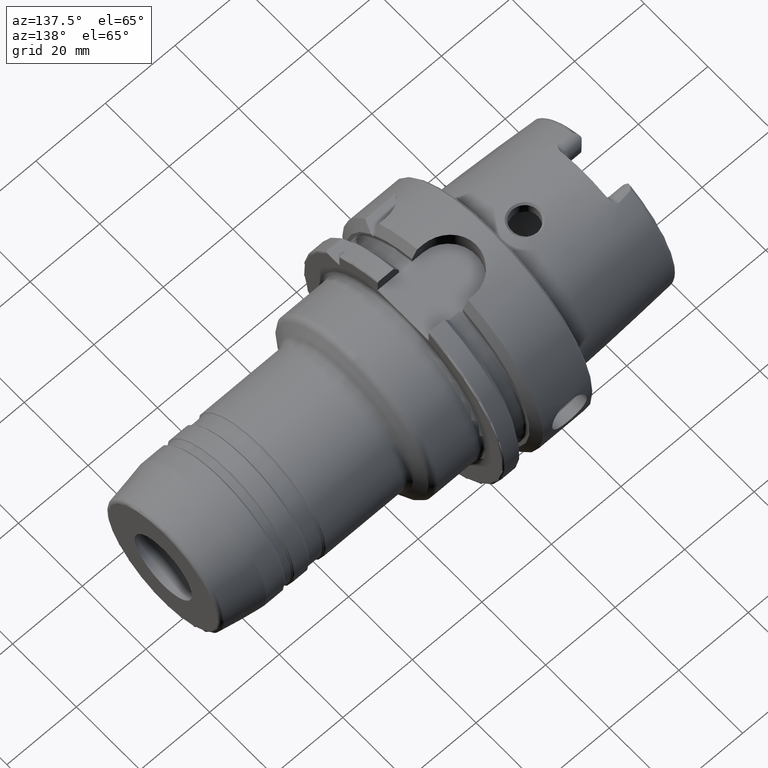
[diagram: clean part render]
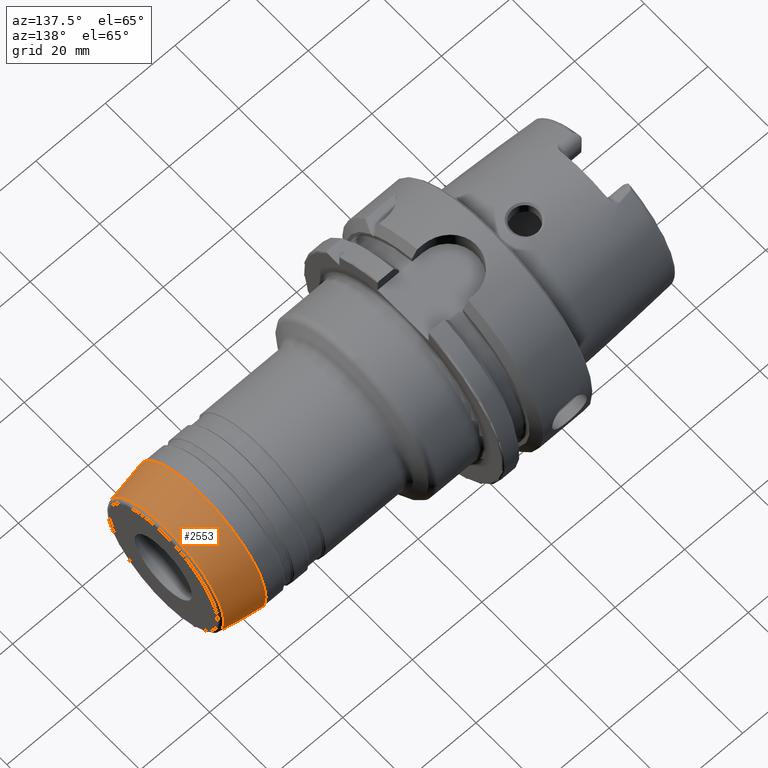
[diagram: same view with one face highlighted and labeled with its STEP entity id]
A machine part, auxiliary view. The second image highlights one B-rep face of the part: STEP entity #2553.
In plain terms, the highlighted conical surface has half-angle 10 deg.
Its self-contained STEP definition (entity closure, byte-faithful):
#98=CONICAL_SURFACE('',#2751,19.,0.174532925199433);
#216=FACE_OUTER_BOUND('',#354,.T.);
#354=EDGE_LOOP('',(#1749,#1750,#1751,#1752,#1753,#1754,#1755,#1756));
#498=LINE('',#4034,#614);
#614=VECTOR('',#3192,19.);
#755=CIRCLE('',#2747,18.1457081218349);
#756=CIRCLE('',#2748,18.1457081218349);
#757=CIRCLE('',#2749,18.1457081218349);
#759=CIRCLE('',#2752,19.9848077530122);
#760=CIRCLE('',#2753,19.9848077530122);
#761=CIRCLE('',#2754,19.9848077530122);
#986=VERTEX_POINT('',#4024);
#987=VERTEX_POINT('',#4026);
#988=VERTEX_POINT('',#4028);
#989=VERTEX_POINT('',#4033);
#990=VERTEX_POINT('',#4035);
#991=VERTEX_POINT('',#4037);
#1289=EDGE_CURVE('',#986,#987,#755,.T.);
#1290=EDGE_CURVE('',#987,#988,#756,.T.);
#1291=EDGE_CURVE('',#988,#986,#757,.T.);
#1293=EDGE_CURVE('',#987,#989,#498,.T.);
#1294=EDGE_CURVE('',#990,#989,#759,.T.);
#1295=EDGE_CURVE('',#991,#990,#760,.T.);
#1296=EDGE_CURVE('',#989,#991,#761,.T.);
#1749=ORIENTED_EDGE('',*,*,#1291,.F.);
#1750=ORIENTED_EDGE('',*,*,#1290,.F.);
#1751=ORIENTED_EDGE('',*,*,#1293,.T.);
#1752=ORIENTED_EDGE('',*,*,#1294,.F.);
#1753=ORIENTED_EDGE('',*,*,#1295,.F.);
#1754=ORIENTED_EDGE('',*,*,#1296,.F.);
#1755=ORIENTED_EDGE('',*,*,#1293,.F.);
#1756=ORIENTED_EDGE('',*,*,#1289,.F.);
#2553=ADVANCED_FACE('',(#216),#98,.T.);
#2747=AXIS2_PLACEMENT_3D('',#4027,#3182,#3183);
#2748=AXIS2_PLACEMENT_3D('',#4029,#3184,#3185);
#2749=AXIS2_PLACEMENT_3D('',#4030,#3186,#3187);
#2751=AXIS2_PLACEMENT_3D('',#4032,#3190,#3191);
#2752=AXIS2_PLACEMENT_3D('',#4036,#3193,#3194);
#2753=AXIS2_PLACEMENT_3D('',#4038,#3195,#3196);
#2754=AXIS2_PLACEMENT_3D('',#4039,#3197,#3198);
#3182=DIRECTION('center_axis',(1.,0.,0.));
#3183=DIRECTION('ref_axis',(0.,-1.,3.06161699786838E-17));
#3184=DIRECTION('center_axis',(1.,0.,0.));
#3185=DIRECTION('ref_axis',(0.,-1.,3.06161699786838E-17));
#3186=DIRECTION('center_axis',(1.,0.,0.));
#3187=DIRECTION('ref_axis',(0.,-1.,3.06161699786838E-17));
#3190=DIRECTION('center_axis',(-1.,0.,0.));
#3191=DIRECTION('ref_axis',(0.,1.,0.));
#3192=DIRECTION('',(-0.984807753012208,-0.17364817766693,-2.12657684957577E-17));
#3193=DIRECTION('center_axis',(-1.,0.,0.));
#3194=DIRECTION('ref_axis',(0.,-1.,3.06161699786838E-17));
#3195=DIRECTION('center_axis',(-1.,0.,0.));
#3196=DIRECTION('ref_axis',(0.,-1.,3.06161699786838E-17));
#3197=DIRECTION('center_axis',(-1.,0.,0.));
#3198=DIRECTION('ref_axis',(0.,-1.,3.06161699786838E-17));
#4024=CARTESIAN_POINT('',(94.1736481776669,-2.22220833696673E-15,18.1457081218349));
#4026=CARTESIAN_POINT('',(94.1736481776669,-18.1457081218349,-2.22220833696673E-15));
#4027=CARTESIAN_POINT('Origin',(94.1736481776669,0.,-2.77776042120841E-15));
#4028=CARTESIAN_POINT('',(94.1736481776669,18.1457081218349,-1.11110416848336E-15));
#4029=CARTESIAN_POINT('Origin',(94.1736481776669,0.,-2.77776042120841E-15));
#4030=CARTESIAN_POINT('Origin',(94.1736481776669,0.,-2.77776042120841E-15));
#4032=CARTESIAN_POINT('Origin',(89.3287181803823,0.,0.));
#4033=CARTESIAN_POINT('',(83.7435958749056,-19.9848077530122,-2.44743308463016E-15));
#4034=CARTESIAN_POINT('',(89.3287181803823,-19.,-2.32682891837997E-15));
#4035=CARTESIAN_POINT('',(83.7435958749056,19.9848077530122,-6.1185827115754E-15));
#4036=CARTESIAN_POINT('Origin',(83.7435958749056,0.,-3.0592913557877E-15));
#4037=CARTESIAN_POINT('',(83.7435958749056,-2.44743308463016E-15,19.9848077530122));
#4038=CARTESIAN_POINT('Origin',(83.7435958749056,0.,-3.0592913557877E-15));
#4039=CARTESIAN_POINT('Origin',(83.7435958749056,0.,-3.0592913557877E-15));